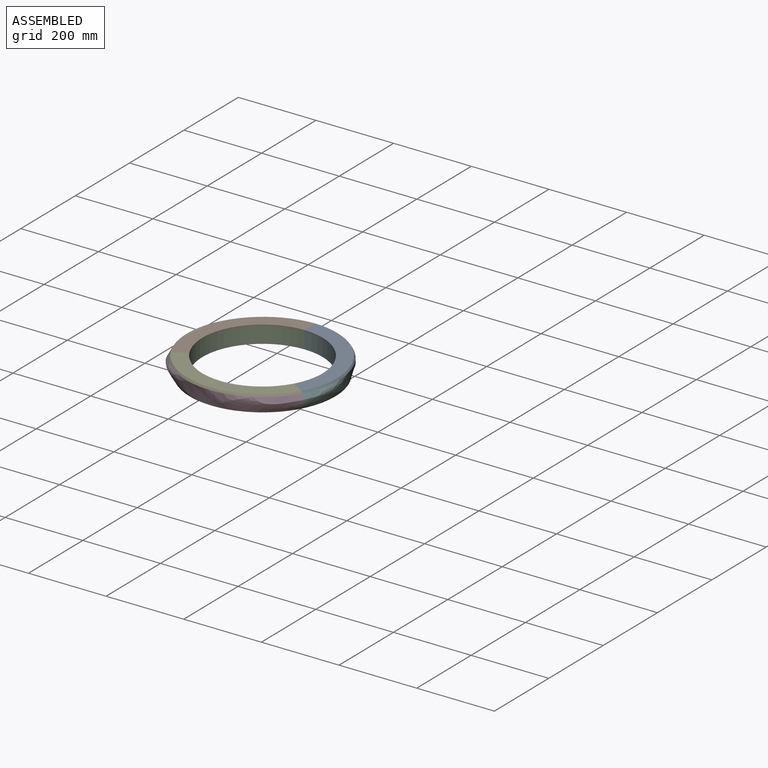
[diagram: assembled view]
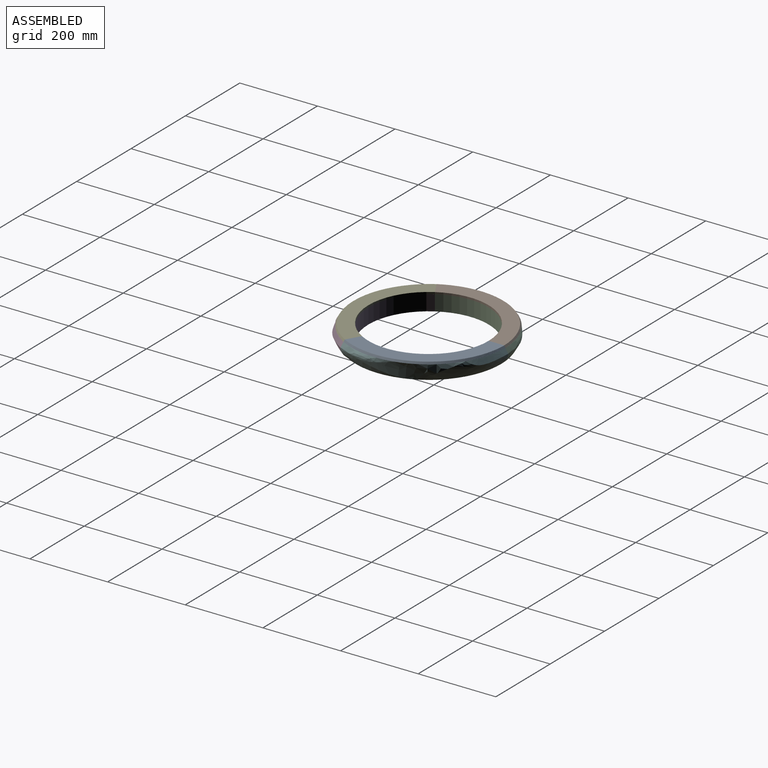
[diagram: assembled view, second angle]
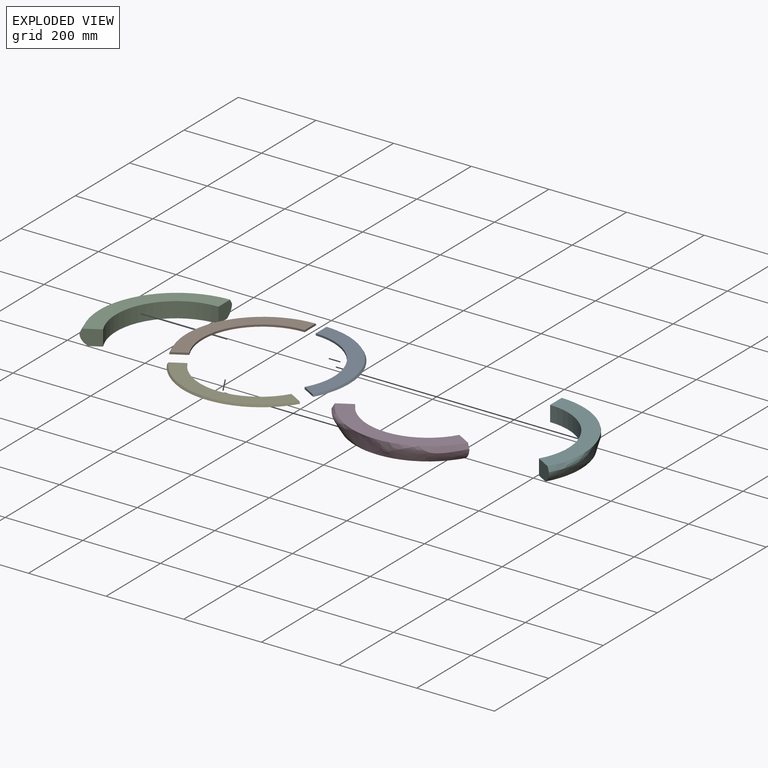
[diagram: exploded view]
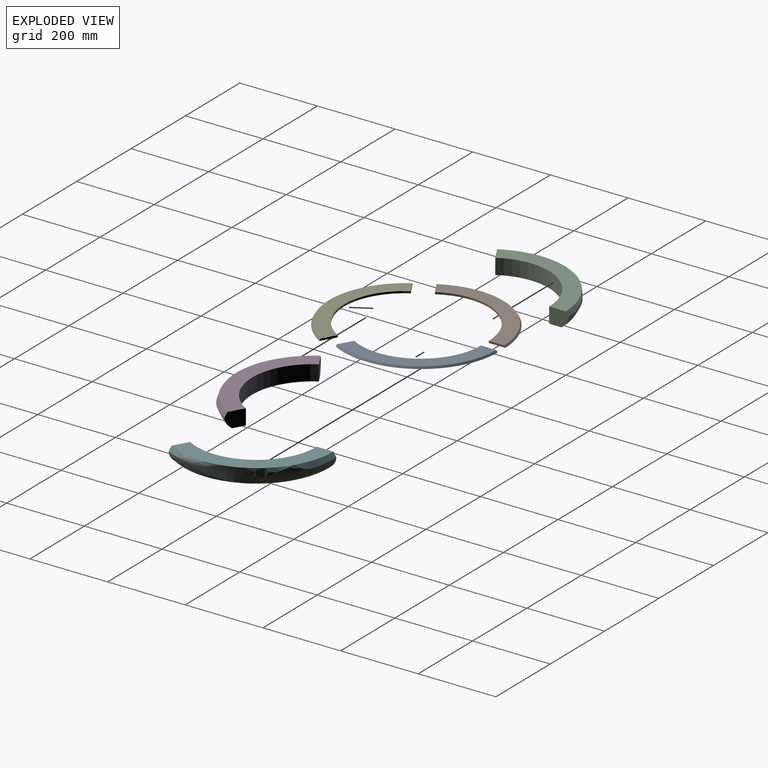
[diagram: exploded view, second angle]
ASSEMBLY  parts=6 mates=4
PART A: 7 faces, bbox 196.6x297x5 mm
  f0: plane 296.97x196.59mm, normal (0,0,-1), area 15357mm2, adj f2,f3,f4,f5,f6
  f1: plane 292.51x193.66mm, normal (0,0,1), area 14138.3mm2, adj f2,f3,f4,f5,f6
  f2: cylinder r=155mm len=232.5mm, axis (0,0,1), area 1623.2mm2, adj f0,f1,f3,f6
  f3: plane 37.22x21.49mm, normal (-0.5,-0.87,0), area 207.4mm2, adj f0,f1,f2,f4
  f4: bspline ~266.35x95.18mm, area 1751.8mm2, adj f0,f1,f3,f5
  f5: bspline ~102.94x33.14mm, area 628mm2, adj f0,f1,f4,f6
  f6: plane 42.98x5mm, normal (-1,0,0), area 207.4mm2, adj f0,f1,f2,f5
PART B: same geometry as A
PART C: 13 faces, bbox 242.1x338.7x118.3 mm
  f0: bspline ~174.68x65.51mm, area 3477.8mm2, adj f1,f3,f5,f12
  f1: bspline ~188.43x87.38mm, area 4264.1mm2, adj f0,f2,f11,f12
  f2: plane 44.96x41.66mm, normal (-0.5,-0.87,0), area 1797.7mm2, adj f1,f9,f10,f11,f12
  f3: bspline ~139.74x88.12mm, area 2298.4mm2, adj f0,f4,f9
  f4: bspline ~80.34x72.8mm, area 2169.1mm2, adj f3,f5,f6,f7,f11
  f5: bspline ~59.72x39.62mm, area 539.9mm2, adj f0,f4,f11
  f6: bspline ~143.42x73.83mm, area 3950.8mm2, adj f4,f7,f8,f11
  f7: bspline ~107.67x40.65mm, area 1514.1mm2, adj f4,f6,f8,f9
  f8: plane 51.62x41.62mm, normal (-1,0,0), area 1797.3mm2, adj f6,f7,f9,f10,f11
  f9: plane 304.95x204.56mm, normal (0,0,1), area 15356.9mm2, adj f2,f3,f7,f8,f10,f12
  f10: cylinder r=155mm len=232.5mm, axis (0,0,-1), area 12985.2mm2, adj f2,f8,f9,f11
  f11: plane 302.58x208.83mm, normal (0,0,-1), area 11656.7mm2, adj f1,f2,f4,f5,f6,f8,f10
  f12: bspline ~148.16x33.35mm, area 1399.9mm2, adj f0,f1,f2,f9
PART D: same geometry as C
PART E: same geometry as A
PART F: same geometry as C
PLACE A t=(847.08,-320.6,197.63)mm
PLACE B rot(axis=(0,0,1),120deg) t=(847.08,-320.6,197.63)mm
PLACE C rot(axis=(0,0,1),120deg) t=(847.08,-320.61,197.63)mm
PLACE D rot(axis=(0,0,-1),120deg) t=(847.08,-320.61,197.63)mm
PLACE E rot(axis=(0,0,-1),120deg) t=(847.08,-320.6,197.63)mm
PLACE F t=(847.08,-320.6,197.63)mm
MATE fastened B.f3 <-> A.f6  axis (1,0,0) through (847.08,-144.85,213.1)mm
MATE fastened D.f2 <-> C.f8  axis (-0.5,0.87,0) through (693.19,-409.46,191.43)mm
MATE fastened E.f3 <-> B.f6  axis (-0.5,0.87,0) through (694.88,-408.48,213.1)mm
MATE fastened C.f2 <-> F.f8  axis (1,0,0) through (847.08,-142.9,191.43)mm
